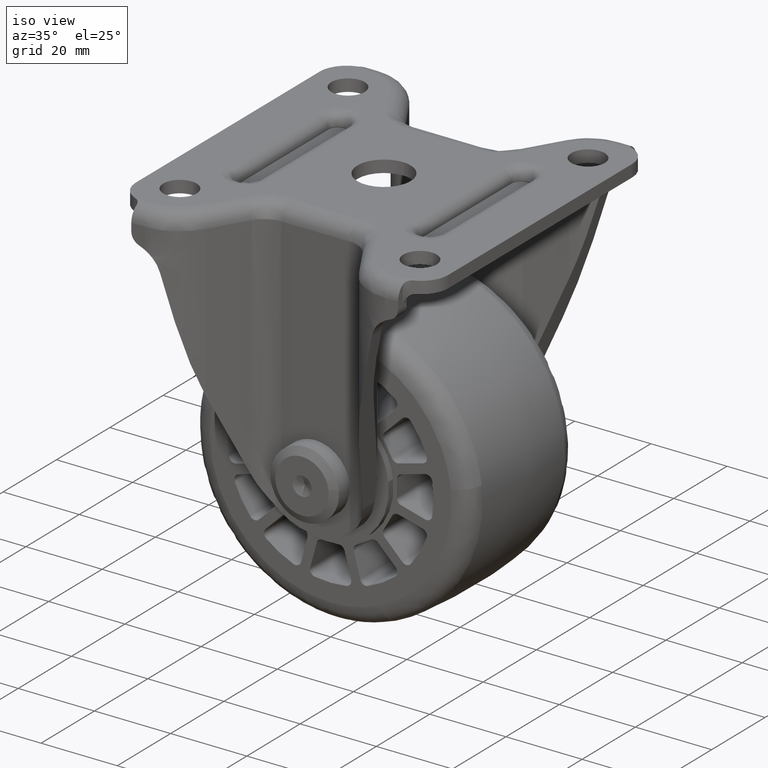
[diagram: clean part render]
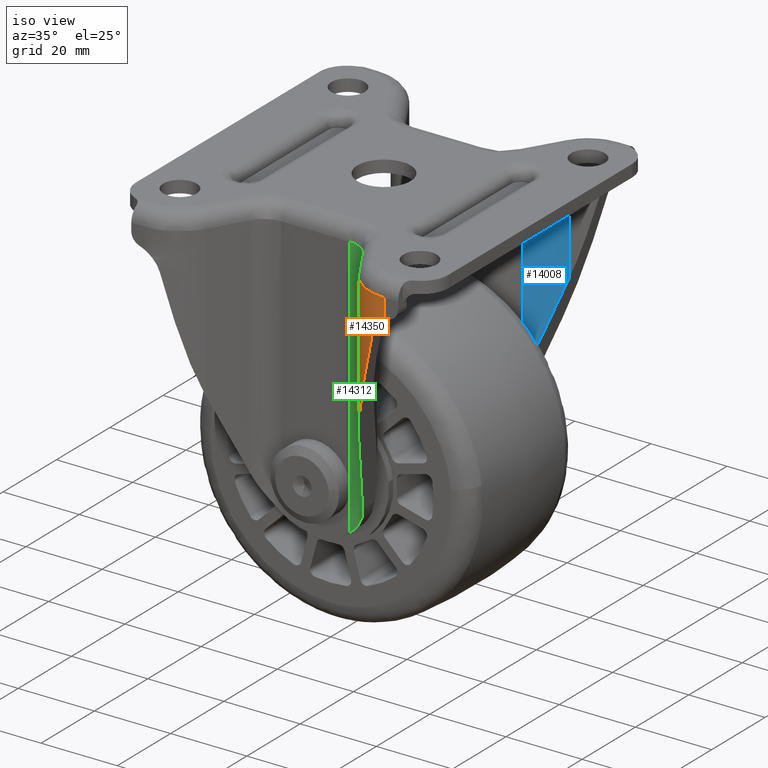
[diagram: same view with three faces highlighted in distinct colors, each labeled with its STEP entity id]
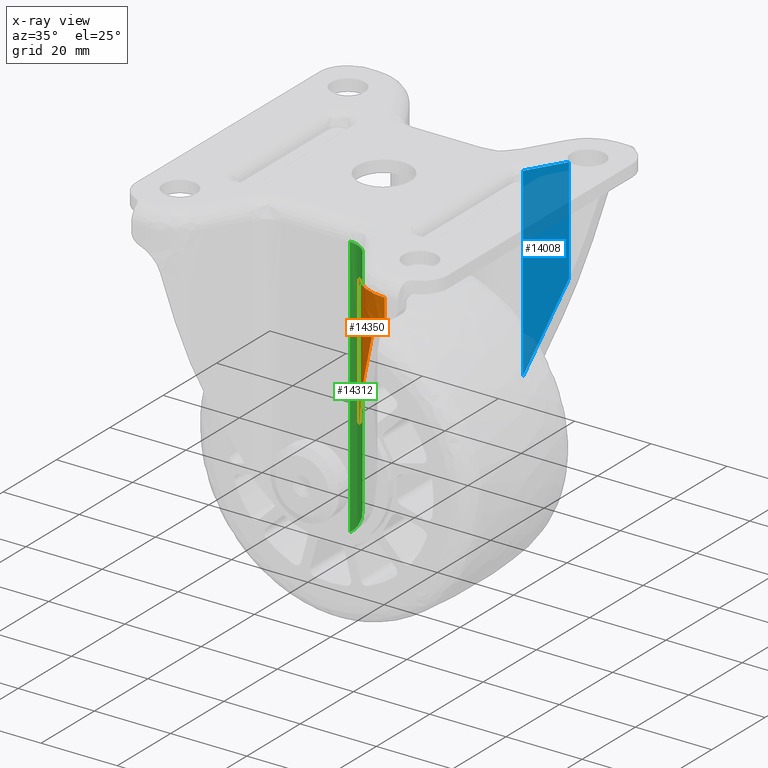
[diagram: x-ray of the same camera — body ghosted, the three highlighted faces saturated]
A machine part, iso view with three faces highlighted in distinct colors.
The next image is the same camera in x-ray (body ghosted, the three faces saturated) — at least one of them is partly hidden behind the body in this view.
Their STEP definitions:

[orange] entity #14350 — the highlighted face is a freeform B-spline surface patch.
#7647=CARTESIAN_POINT('',(31.529712999999902,-44.750000000000000,-9.464167259053451));
#7648=VERTEX_POINT('',#7647);
#7649=CARTESIAN_POINT('',(27.843487000000149,-44.224845660884050,-14.117373000000100));
#7650=VERTEX_POINT('',#7649);
#7651=CARTESIAN_POINT('',(31.529712999999902,-44.750000000000000,-9.464167259053451));
#7652=CARTESIAN_POINT('',(31.302003899249289,-44.749999989587231,-9.585072502810091));
#7653=CARTESIAN_POINT('',(31.082876151083219,-44.744125529120709,-9.716629333726413));
#7654=CARTESIAN_POINT('',(30.660968330245161,-44.723074555904113,-10.000216022868431));
#7655=CARTESIAN_POINT('',(30.458190851606741,-44.707891400227489,-10.152248633244360));
#7656=CARTESIAN_POINT('',(30.068749595857131,-44.670360138229782,-10.476686426593870));
#7657=CARTESIAN_POINT('',(29.882085284686980,-44.648006925007699,-10.649090420811200));
#7658=CARTESIAN_POINT('',(29.614403160220071,-44.610616317329857,-10.923420615624771));
#7659=CARTESIAN_POINT('',(29.527167662295032,-44.597493009012943,-11.017596433586240));
#7660=CARTESIAN_POINT('',(29.358798675597651,-44.570537298128620,-11.209062204049591));
#7661=CARTESIAN_POINT('',(29.277404683572929,-44.556670814424713,-11.306606470525610));
#7662=CARTESIAN_POINT('',(29.041413641183809,-44.514332007254822,-11.604610154233541));
#7663=CARTESIAN_POINT('',(28.894983795721341,-44.485124924738301,-11.810425226538550));
#7664=CARTESIAN_POINT('',(28.623558978835732,-44.426859904241773,-12.236390574921851));
#7665=CARTESIAN_POINT('',(28.498563593556270,-44.397798002693712,-12.456540041831669));
#7666=CARTESIAN_POINT('',(28.327453741073509,-44.355817694967030,-12.797922439904729));
#7667=CARTESIAN_POINT('',(28.273054736904889,-44.342066743421043,-12.913811913943860));
#7668=CARTESIAN_POINT('',(28.170362414766430,-44.315483025010771,-13.148264009172760));
#7669=CARTESIAN_POINT('',(28.122133181330241,-44.302668960185990,-13.266642739315900));
#7670=CARTESIAN_POINT('',(27.986739786670661,-44.265976714088822,-13.625247634918640));
#7671=CARTESIAN_POINT('',(27.908842579506601,-44.243853079624650,-13.868933547217891));
#7672=CARTESIAN_POINT('',(27.843487000000149,-44.224845660884050,-14.117373000000100));
#7673=B_SPLINE_CURVE_WITH_KNOTS('',3,(#7651,#7652,#7653,#7654,#7655,#7656,#7657,#7658,#7659,#7660,#7661,#7662,#7663,#7664,#7665,#7666,#7667,#7668,#7669,#7670,#7671,#7672),.UNSPECIFIED.,.F.,.U.,(4,2,2,2,2,2,2,2,2,2,4),(0.0,0.124999999999999,0.249999999999998,0.374999999999997,0.437499999999997,0.499999999999997,0.624999999999997,0.749999999999998,0.812499999999999,0.874999999999999,1.0),.UNSPECIFIED.);
#7674=EDGE_CURVE('',#7648,#7650,#7673,.T.);
#7746=CARTESIAN_POINT('',(20.182173826665451,-38.293392412047012,-43.240722263544797));
#7747=VERTEX_POINT('',#7746);
#7813=CARTESIAN_POINT('',(20.182173826665451,-38.293392412047012,-43.240722263544683));
#7814=CARTESIAN_POINT('',(22.842726409528648,-42.770474321997632,-33.127024996288235));
#7815=CARTESIAN_POINT('',(27.843487000000170,-44.224845660884050,-14.117372999999951));
#7823=(BOUNDED_CURVE()B_SPLINE_CURVE(2,(#7813,#7814,#7815),.UNSPECIFIED.,.F.,.U.)CURVE()GEOMETRIC_REPRESENTATION_ITEM()QUASI_UNIFORM_CURVE()RATIONAL_B_SPLINE_CURVE((1.0,0.930217076352708,1.0))REPRESENTATION_ITEM(''));
#7824=EDGE_CURVE('',#7747,#7650,#7823,.T.);
#12332=CARTESIAN_POINT('',(20.182173826665501,-38.293392412047062,-4.0));
#12333=VERTEX_POINT('',#12332);
#12382=CARTESIAN_POINT('',(31.529712999999902,-44.750000000000000,-4.0));
#12383=VERTEX_POINT('',#12382);
#12415=CARTESIAN_POINT('',(31.529712999999902,-44.750000000000000,-4.0));
#12416=CARTESIAN_POINT('',(24.019079579032915,-44.749999499999937,-4.0));
#12417=CARTESIAN_POINT('',(20.182173826665501,-38.293392412047062,-4.0));
#12425=(BOUNDED_CURVE()B_SPLINE_CURVE(2,(#12415,#12416,#12417),.UNSPECIFIED.,.F.,.U.)CURVE()GEOMETRIC_REPRESENTATION_ITEM()QUASI_UNIFORM_CURVE()RATIONAL_B_SPLINE_CURVE((1.0,0.869155664215651,1.0))REPRESENTATION_ITEM(''));
#12426=EDGE_CURVE('',#12383,#12333,#12425,.T.);
#13479=CARTESIAN_POINT('',(31.529712999999902,-44.750000000000000,-9.464167259053451));
#13480=CARTESIAN_POINT('',(31.529712999999902,-44.750000000000000,-4.0));
#13481=QUASI_UNIFORM_CURVE('',1,(#13479,#13480),.UNSPECIFIED.,.F.,.U.);
#13482=EDGE_CURVE('',#7648,#12383,#13481,.T.);
#14319=CARTESIAN_POINT('',(20.182173826665451,-38.293392412047012,-43.240722263544797));
#14320=CARTESIAN_POINT('',(20.182173826665501,-38.293392412047062,-4.0));
#14321=QUASI_UNIFORM_CURVE('',1,(#14319,#14320),.UNSPECIFIED.,.F.,.U.);
#14322=EDGE_CURVE('',#7747,#12333,#14321,.T.);
#14329=CARTESIAN_POINT('',(32.041344803973260,-44.740079852563433,-44.221740320133421));
#14330=CARTESIAN_POINT('',(32.041344803973260,-44.740079852563433,-2.994456491996665));
#14331=CARTESIAN_POINT('',(23.746807528388150,-45.061817764322100,-44.221740320133414));
#14332=CARTESIAN_POINT('',(23.746807528388150,-45.061817764322100,-2.994456491996665));
#14333=CARTESIAN_POINT('',(19.863376282032132,-37.725481781369886,-44.221740320133428));
#14334=CARTESIAN_POINT('',(19.863376282032132,-37.725481781369886,-2.994456491996665));
#14342=(BOUNDED_SURFACE()B_SPLINE_SURFACE(1,2,((#14329,#14331,#14333),(#14330,#14332,#14334)),.UNSPECIFIED.,.F.,.F.,.U.)B_SPLINE_SURFACE_WITH_KNOTS((2,2),(3,3),(0.0,41.227283828136770),(0.0,15.221693453582761),.UNSPECIFIED.)GEOMETRIC_REPRESENTATION_ITEM()RATIONAL_B_SPLINE_SURFACE(((1.0,0.842976390210947,0.991618197043999),(1.0,0.842976390210947,0.991618197043999)))REPRESENTATION_ITEM('')SURFACE());
#14343=ORIENTED_EDGE('',*,*,#14322,.F.);
#14344=ORIENTED_EDGE('',*,*,#7824,.T.);
#14345=ORIENTED_EDGE('',*,*,#7674,.F.);
#14346=ORIENTED_EDGE('',*,*,#13482,.T.);
#14347=ORIENTED_EDGE('',*,*,#12426,.T.);
#14348=EDGE_LOOP('',(#14343,#14344,#14345,#14346,#14347));
#14349=FACE_OUTER_BOUND('',#14348,.T.);
#14350=ADVANCED_FACE('',(#14349),#14342,.T.);

[blue] entity #14008 — the highlighted face is a freeform B-spline surface patch.
#8776=CARTESIAN_POINT('',(22.933092414140500,36.658630372762900,-32.783511990839052));
#8777=VERTEX_POINT('',#8776);
#8791=CARTESIAN_POINT('',(17.338723438571598,27.244627042568400,-54.049678494996400));
#8792=VERTEX_POINT('',#8791);
#8793=CARTESIAN_POINT('',(22.933092414140500,36.658630372762900,-32.783511990839052));
#8794=CARTESIAN_POINT('',(17.338723438571598,27.244627042568400,-54.049678494996400));
#8795=QUASI_UNIFORM_CURVE('',1,(#8793,#8794),.UNSPECIFIED.,.F.,.U.);
#8796=EDGE_CURVE('',#8777,#8792,#8795,.T.);
#11281=CARTESIAN_POINT('',(17.338723438571652,27.244627042568400,-5.199997000000289));
#11282=VERTEX_POINT('',#11281);
#11342=CARTESIAN_POINT('',(22.933092414140500,36.658630372762900,-5.199997000000289));
#11343=VERTEX_POINT('',#11342);
#11367=CARTESIAN_POINT('',(22.933092414140500,36.658630372762900,-5.199997000000289));
#11368=CARTESIAN_POINT('',(17.338723438571652,27.244627042568400,-5.199997000000289));
#11369=QUASI_UNIFORM_CURVE('',1,(#11367,#11368),.UNSPECIFIED.,.F.,.U.);
#11370=EDGE_CURVE('',#11343,#11282,#11369,.T.);
#13985=CARTESIAN_POINT('',(22.933092414140500,36.658630372762900,-32.783511990839052));
#13986=CARTESIAN_POINT('',(22.933092414140500,36.658630372762900,-5.199997000000289));
#13987=QUASI_UNIFORM_CURVE('',1,(#13985,#13986),.UNSPECIFIED.,.F.,.U.);
#13988=EDGE_CURVE('',#8777,#11343,#13987,.T.);
#13993=CARTESIAN_POINT('',(17.059284896619751,26.774397893220542,-2.759955504005390));
#13994=CARTESIAN_POINT('',(23.212530856057260,37.128859353775248,-2.759955504005390));
#13995=CARTESIAN_POINT('',(17.059284896619751,26.774397893220542,-56.489721301241843));
#13996=CARTESIAN_POINT('',(23.212530856057260,37.128859353775248,-56.489721301241843));
#13997=B_SPLINE_SURFACE_WITH_KNOTS('',1,1,((#13993,#13995),(#13994,#13996)),.UNSPECIFIED.,.F.,.F.,.U.,(2,2),(2,2),(0.0,12.044804190000219),(0.0,53.729765797236453),.UNSPECIFIED.);
#13998=ORIENTED_EDGE('',*,*,#8796,.F.);
#13999=ORIENTED_EDGE('',*,*,#13988,.T.);
#14000=ORIENTED_EDGE('',*,*,#11370,.T.);
#14001=CARTESIAN_POINT('',(17.338723438571598,27.244627042568400,-54.049678494996400));
#14002=CARTESIAN_POINT('',(17.338723438571652,27.244627042568400,-5.199997000000289));
#14003=QUASI_UNIFORM_CURVE('',1,(#14001,#14002),.UNSPECIFIED.,.F.,.U.);
#14004=EDGE_CURVE('',#8792,#11282,#14003,.T.);
#14005=ORIENTED_EDGE('',*,*,#14004,.F.);
#14006=EDGE_LOOP('',(#13998,#13999,#14000,#14005));
#14007=FACE_OUTER_BOUND('',#14006,.T.);
#14008=ADVANCED_FACE('',(#14007),#13997,.F.);

[green] entity #14312 — the highlighted face is a freeform B-spline surface patch.
#7748=CARTESIAN_POINT('',(14.587804366053160,-28.879388265638600,-64.506890611523005));
#7749=VERTEX_POINT('',#7748);
#7755=CARTESIAN_POINT('',(14.506451323574399,-28.746163104038001,-64.816132858898897));
#7756=VERTEX_POINT('',#7755);
#7757=CARTESIAN_POINT('',(14.587804366053160,-28.879388265638600,-64.506890611523005));
#7758=CARTESIAN_POINT('',(14.547927778536783,-28.812287235456910,-64.658470978433002));
#7759=CARTESIAN_POINT('',(14.506451323574399,-28.746163104038001,-64.816132858898897));
#7767=(BOUNDED_CURVE()B_SPLINE_CURVE(2,(#7757,#7758,#7759),.UNSPECIFIED.,.F.,.U.)CURVE()GEOMETRIC_REPRESENTATION_ITEM()QUASI_UNIFORM_CURVE()RATIONAL_B_SPLINE_CURVE((1.0,0.999927906016020,1.0))REPRESENTATION_ITEM(''));
#7768=EDGE_CURVE('',#7749,#7756,#7767,.T.);
#7847=CARTESIAN_POINT('',(9.000002042035140,-25.699997000000049,-72.999998468473507));
#7848=VERTEX_POINT('',#7847);
#7849=CARTESIAN_POINT('',(14.506451323574399,-28.746163104038001,-64.816132858898897));
#7850=CARTESIAN_POINT('',(14.401911984890420,-28.579495944701680,-65.213523328279877));
#7851=CARTESIAN_POINT('',(14.282612197031590,-28.406301986078599,-65.601044475438428));
#7852=CARTESIAN_POINT('',(14.014768831767940,-28.058716135186131,-66.361797835415288));
#7853=CARTESIAN_POINT('',(13.866214970860330,-27.884199028143929,-66.734969031165193));
#7854=CARTESIAN_POINT('',(13.538940429428330,-27.541222387207050,-67.469843850892062));
#7855=CARTESIAN_POINT('',(13.360223230209661,-27.372697887124659,-67.831519962847850));
#7856=CARTESIAN_POINT('',(12.970632655094320,-27.047479048598159,-68.545059197277610));
#7857=CARTESIAN_POINT('',(12.759773649776800,-26.890739117301301,-68.896908620679497));
#7858=CARTESIAN_POINT('',(12.416873780151160,-26.668858893002529,-69.418105063909593));
#7859=CARTESIAN_POINT('',(12.298039928942890,-26.597059286563901,-69.590857756975609));
#7860=CARTESIAN_POINT('',(12.051244436052340,-26.458926792433289,-69.933763520318820));
#7861=CARTESIAN_POINT('',(11.924108779841770,-26.393052539996130,-70.102776351610743));
#7862=CARTESIAN_POINT('',(11.531246464581940,-26.206091082063779,-70.602603031305563));
#7863=CARTESIAN_POINT('',(11.254105890877330,-26.095594601936011,-70.926221459052925));
#7864=CARTESIAN_POINT('',(10.667197811035070,-25.909911394109098,-71.554414371128786));
#7865=CARTESIAN_POINT('',(10.357453819032070,-25.834652436779770,-71.858988419886771));
#7866=CARTESIAN_POINT('',(9.947551623947149,-25.768897990017351,-72.227571938477894));
#7867=CARTESIAN_POINT('',(9.864333507834925,-25.757162965179170,-72.300763113374970));
#7868=CARTESIAN_POINT('',(9.696000789818662,-25.736811511249641,-72.445518388533031));
#7869=CARTESIAN_POINT('',(9.611000813438514,-25.728205017908191,-72.516987911486240));
#7870=CARTESIAN_POINT('',(9.353483975646645,-25.707330816590030,-72.728671121412702));
#7871=CARTESIAN_POINT('',(9.178452087806937,-25.699997127303590,-72.866160886696605));
#7872=CARTESIAN_POINT('',(9.000002042035140,-25.699997000000049,-72.999998468473507));
#7873=B_SPLINE_CURVE_WITH_KNOTS('',3,(#7849,#7850,#7851,#7852,#7853,#7854,#7855,#7856,#7857,#7858,#7859,#7860,#7861,#7862,#7863,#7864,#7865,#7866,#7867,#7868,#7869,#7870,#7871,#7872),.UNSPECIFIED.,.F.,.U.,(4,2,2,2,2,2,2,2,2,2,2,4),(0.0,0.124999999999997,0.249999999999995,0.374999999999992,0.499999999999990,0.562499999999989,0.624999999999989,0.749999999999992,0.874999999999995,0.906249999999996,0.937499999999998,1.0),.UNSPECIFIED.);
#7874=EDGE_CURVE('',#7756,#7848,#7873,.T.);
#12221=CARTESIAN_POINT('',(9.000002042035140,-25.699997000000302,-4.0));
#12222=VERTEX_POINT('',#12221);
#12269=CARTESIAN_POINT('',(14.587804366053160,-28.879388265638600,-4.0));
#12270=VERTEX_POINT('',#12269);
#12302=CARTESIAN_POINT('',(14.587804366053160,-28.879388265638600,-4.0));
#12303=CARTESIAN_POINT('',(12.698419939393547,-25.699998161892523,-4.0));
#12304=CARTESIAN_POINT('',(9.000002042035142,-25.699997000000320,-4.0));
#12312=(BOUNDED_CURVE()B_SPLINE_CURVE(2,(#12302,#12303,#12304),.UNSPECIFIED.,.F.,.U.)CURVE()GEOMETRIC_REPRESENTATION_ITEM()QUASI_UNIFORM_CURVE()RATIONAL_B_SPLINE_CURVE((1.0,0.869155668531322,1.0))REPRESENTATION_ITEM(''));
#12313=EDGE_CURVE('',#12270,#12222,#12312,.T.);
#14271=CARTESIAN_POINT('',(9.000002042035140,-25.699997000000049,-72.999998468473507));
#14272=CARTESIAN_POINT('',(9.000002042035140,-25.699997000000302,-4.0));
#14273=QUASI_UNIFORM_CURVE('',1,(#14271,#14272),.UNSPECIFIED.,.F.,.U.);
#14274=EDGE_CURVE('',#7848,#12222,#14273,.T.);
#14287=CARTESIAN_POINT('',(8.748062023667554,-25.704881353910132,-74.724998430185352));
#14288=CARTESIAN_POINT('',(8.748062023667554,-25.704881353910132,-2.231875039245367));
#14289=CARTESIAN_POINT('',(12.832493934428452,-25.546450993908113,-74.724998430185337));
#14290=CARTESIAN_POINT('',(12.832493934428452,-25.546450993908113,-2.231875039245367));
#14291=CARTESIAN_POINT('',(14.744788344935058,-29.159042072366553,-74.724998430185352));
#14292=CARTESIAN_POINT('',(14.744788344935058,-29.159042072366553,-2.231875039245367));
#14300=(BOUNDED_SURFACE()B_SPLINE_SURFACE(1,2,((#14287,#14289,#14291),(#14288,#14290,#14292)),.UNSPECIFIED.,.F.,.F.,.U.)B_SPLINE_SURFACE_WITH_KNOTS((2,2),(3,3),(0.0,72.493123390939999),(0.0,7.495531845660103),.UNSPECIFIED.)GEOMETRIC_REPRESENTATION_ITEM()RATIONAL_B_SPLINE_SURFACE(((1.0,0.842976369808204,0.991618235671324),(1.0,0.842976369808204,0.991618235671324)))REPRESENTATION_ITEM('')SURFACE());
#14301=ORIENTED_EDGE('',*,*,#7874,.F.);
#14302=ORIENTED_EDGE('',*,*,#7768,.F.);
#14303=CARTESIAN_POINT('',(14.587804366053160,-28.879388265638600,-64.506890611523005));
#14304=CARTESIAN_POINT('',(14.587804366053160,-28.879388265638600,-4.0));
#14305=QUASI_UNIFORM_CURVE('',1,(#14303,#14304),.UNSPECIFIED.,.F.,.U.);
#14306=EDGE_CURVE('',#7749,#12270,#14305,.T.);
#14307=ORIENTED_EDGE('',*,*,#14306,.T.);
#14308=ORIENTED_EDGE('',*,*,#12313,.T.);
#14309=ORIENTED_EDGE('',*,*,#14274,.F.);
#14310=EDGE_LOOP('',(#14301,#14302,#14307,#14308,#14309));
#14311=FACE_OUTER_BOUND('',#14310,.T.);
#14312=ADVANCED_FACE('',(#14311),#14300,.F.);